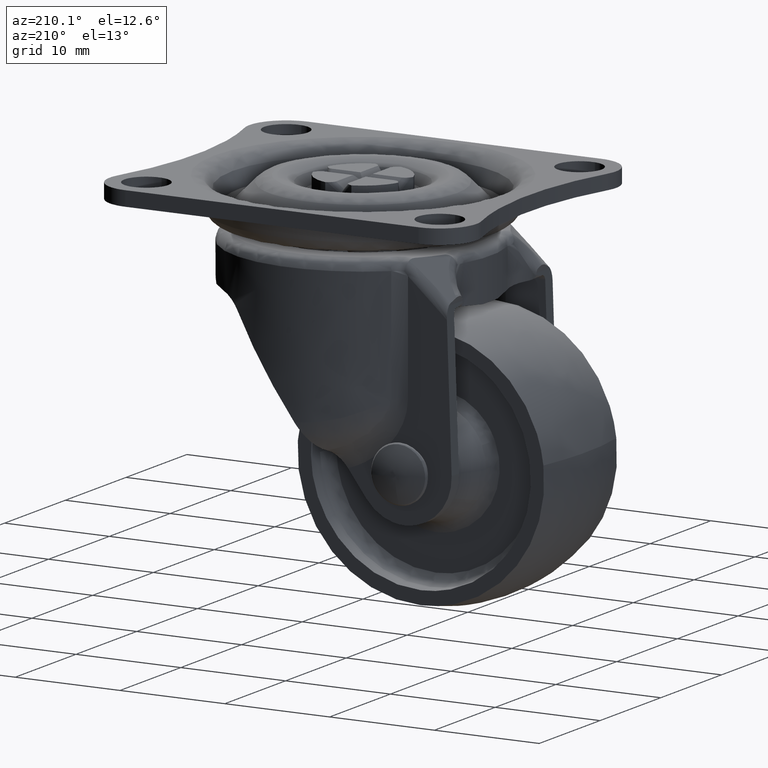
[diagram: clean part render]
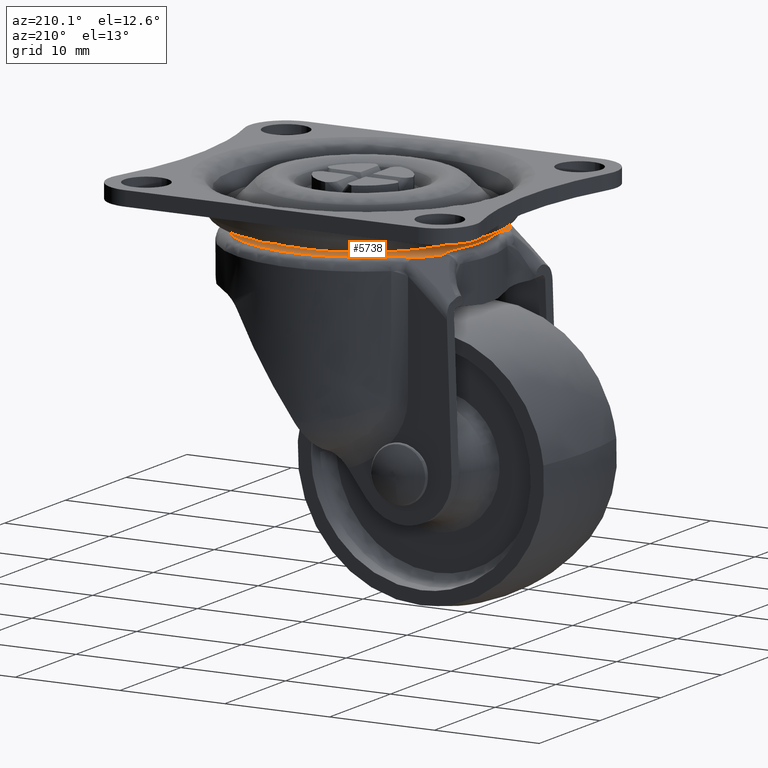
[diagram: same view with one face highlighted and labeled with its STEP entity id]
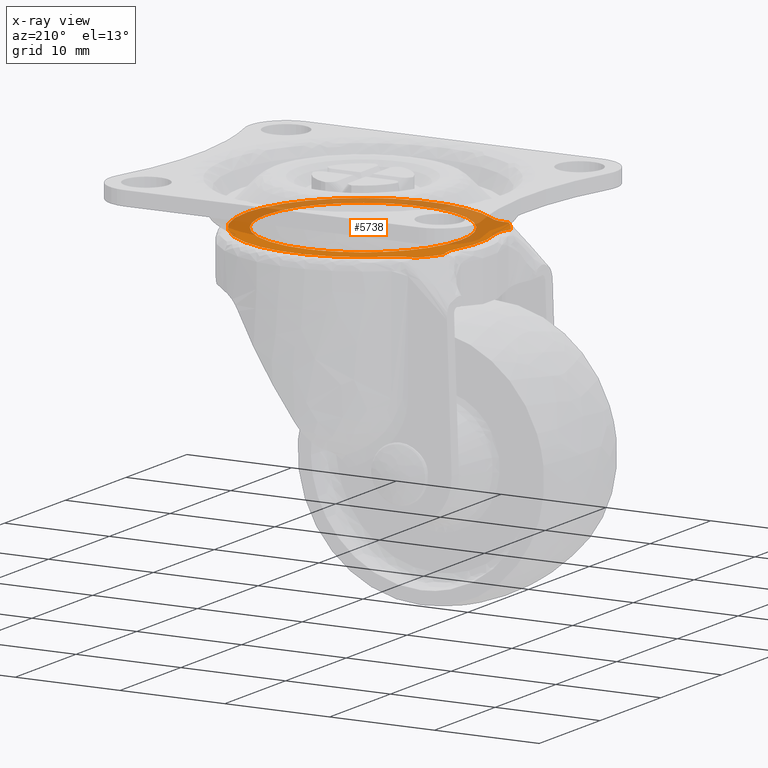
[diagram: x-ray of the same camera — body ghosted, the highlighted face saturated]
A machine part, auxiliary view. The second image highlights one B-rep face of the part: STEP entity #5738.
The next image is the same camera in x-ray: the body ghosted, the highlighted face saturated — about 57% of this face is hidden behind the body in this view.
In plain terms, the highlighted face is a freeform B-spline surface patch.
Its self-contained STEP definition (entity closure, byte-faithful):
#893=CARTESIAN_POINT('',(-0.117579220515249,9.356164553024541,-4.499998000007702));
#894=VERTEX_POINT('',#893);
#910=CARTESIAN_POINT('',(-9.356903334782508,0.0,-4.499998000000000));
#911=VERTEX_POINT('',#910);
#912=CARTESIAN_POINT('',(-9.356903334782508,0.0,-4.499998000000000));
#913=CARTESIAN_POINT('',(-9.356903334782508,9.240053670036382,-4.499998000000000));
#914=CARTESIAN_POINT('',(-0.117579220515249,9.356164553024541,-4.499998000007702));
#922=(BOUNDED_CURVE()B_SPLINE_CURVE(2,(#912,#913,#914),.UNSPECIFIED.,.F.,.U.)B_SPLINE_CURVE_WITH_KNOTS((3,3),(0.0,0.247784295920760),.UNSPECIFIED.)CURVE()GEOMETRIC_REPRESENTATION_ITEM()RATIONAL_B_SPLINE_CURVE((1.0,0.709702639985375,0.994854295641784))REPRESENTATION_ITEM(''));
#923=EDGE_CURVE('',#911,#894,#922,.T.);
#925=CARTESIAN_POINT('',(0.652487294234358,-9.334125580213144,-4.499998000011241));
#926=VERTEX_POINT('',#925);
#927=CARTESIAN_POINT('',(0.652487294234358,-9.334125580213144,-4.499998000011241));
#928=CARTESIAN_POINT('',(0.326641222765872,-9.356903334782510,-4.499998000000001));
#929=CARTESIAN_POINT('',(0.0,-9.356903334782508,-4.499998000000000));
#930=CARTESIAN_POINT('',(-9.356903334782508,-9.356903334782508,-4.499998000000001));
#931=CARTESIAN_POINT('',(-9.356903334782508,0.0,-4.499998000000000));
#939=(BOUNDED_CURVE()B_SPLINE_CURVE(2,(#927,#928,#929,#930,#931),.UNSPECIFIED.,.F.,.U.)B_SPLINE_CURVE_WITH_KNOTS((3,2,3),(0.737833686534273,0.750000000000000,1.0),.UNSPECIFIED.)CURVE()GEOMETRIC_REPRESENTATION_ITEM()RATIONAL_B_SPLINE_CURVE((0.972879876385244,0.985746277151719,1.0,0.707106781186548,1.0))REPRESENTATION_ITEM(''));
#940=EDGE_CURVE('',#926,#911,#939,.T.);
#1009=CARTESIAN_POINT('',(9.356903334782508,0.0,-4.499998000000000));
#1010=VERTEX_POINT('',#1009);
#1011=CARTESIAN_POINT('',(9.356903334782508,0.0,-4.499998000000000));
#1012=CARTESIAN_POINT('',(9.356903334782510,-8.725657135952746,-4.499998000000001));
#1013=CARTESIAN_POINT('',(0.652487294234358,-9.334125580213144,-4.499998000011241));
#1021=(BOUNDED_CURVE()B_SPLINE_CURVE(2,(#1011,#1012,#1013),.UNSPECIFIED.,.F.,.U.)B_SPLINE_CURVE_WITH_KNOTS((3,3),(0.500000000000000,0.737833686534272),.UNSPECIFIED.)CURVE()GEOMETRIC_REPRESENTATION_ITEM()RATIONAL_B_SPLINE_CURVE((1.0,0.721360504034829,0.972879876385243))REPRESENTATION_ITEM(''));
#1022=EDGE_CURVE('',#1010,#926,#1021,.T.);
#1024=CARTESIAN_POINT('',(-0.117579220515249,9.356164553024541,-4.499998000007702));
#1025=CARTESIAN_POINT('',(-0.058791931252408,9.356903334782508,-4.499998000000000));
#1026=CARTESIAN_POINT('',(0.0,9.356903334782508,-4.499998000000000));
#1027=CARTESIAN_POINT('',(9.356903334782508,9.356903334782508,-4.499998000000001));
#1028=CARTESIAN_POINT('',(9.356903334782508,0.0,-4.499998000000000));
#1036=(BOUNDED_CURVE()B_SPLINE_CURVE(2,(#1024,#1025,#1026,#1027,#1028),.UNSPECIFIED.,.F.,.U.)B_SPLINE_CURVE_WITH_KNOTS((3,2,3),(0.247784295920760,0.250000000000000,0.500000000000000),.UNSPECIFIED.)CURVE()GEOMETRIC_REPRESENTATION_ITEM()RATIONAL_B_SPLINE_CURVE((0.994854295641783,0.997404141201173,1.0,0.707106781186548,1.0))REPRESENTATION_ITEM(''));
#1037=EDGE_CURVE('',#894,#1010,#1036,.T.);
#1494=CARTESIAN_POINT('',(-10.715166801738921,-3.259631944086945,-4.499998000000000));
#1495=VERTEX_POINT('',#1494);
#1525=CARTESIAN_POINT('',(-10.902409366156959,-5.475168491720649,-4.499998000000000));
#1526=VERTEX_POINT('',#1525);
#1544=CARTESIAN_POINT('',(-10.715166801738921,-3.259631944086945,-4.499998000000000));
#1545=CARTESIAN_POINT('',(-10.366812595706540,-4.404753076703000,-4.499998000000000));
#1546=CARTESIAN_POINT('',(-10.902409366156970,-5.475168491720647,-4.499998000000000));
#1554=(BOUNDED_CURVE()B_SPLINE_CURVE(2,(#1544,#1545,#1546),.UNSPECIFIED.,.F.,.U.)CURVE()GEOMETRIC_REPRESENTATION_ITEM()QUASI_UNIFORM_CURVE()RATIONAL_B_SPLINE_CURVE((1.0,0.928803561759989,1.0))REPRESENTATION_ITEM(''));
#1555=EDGE_CURVE('',#1495,#1526,#1554,.T.);
#1577=CARTESIAN_POINT('',(-10.715166801738921,3.259631944086945,-4.499998000000000));
#1578=VERTEX_POINT('',#1577);
#1608=CARTESIAN_POINT('',(-10.715166801738921,3.259631944086949,-4.499998000000000));
#1609=CARTESIAN_POINT('',(-11.706770629052906,2.168404E-015,-4.499998000000000));
#1610=CARTESIAN_POINT('',(-10.715166801738921,-3.259631944086946,-4.499998000000000));
#1618=(BOUNDED_CURVE()B_SPLINE_CURVE(2,(#1608,#1609,#1610),.UNSPECIFIED.,.F.,.U.)CURVE()GEOMETRIC_REPRESENTATION_ITEM()QUASI_UNIFORM_CURVE()RATIONAL_B_SPLINE_CURVE((1.0,0.956711321583832,1.0))REPRESENTATION_ITEM(''));
#1619=EDGE_CURVE('',#1578,#1495,#1618,.T.);
#1679=CARTESIAN_POINT('',(-10.902409366157020,5.475168491720750,-4.499998000000074));
#1680=VERTEX_POINT('',#1679);
#1681=CARTESIAN_POINT('',(-10.902409366157020,5.475168491720750,-4.499998000000074));
#1682=CARTESIAN_POINT('',(-10.366812595706518,4.404753076703066,-4.499998000000000));
#1683=CARTESIAN_POINT('',(-10.715166801738921,3.259631944086946,-4.499998000000000));
#1691=(BOUNDED_CURVE()B_SPLINE_CURVE(2,(#1681,#1682,#1683),.UNSPECIFIED.,.F.,.U.)CURVE()GEOMETRIC_REPRESENTATION_ITEM()QUASI_UNIFORM_CURVE()RATIONAL_B_SPLINE_CURVE((1.0,0.928803561759981,1.0))REPRESENTATION_ITEM(''));
#1692=EDGE_CURVE('',#1680,#1578,#1691,.T.);
#2040=CARTESIAN_POINT('',(-9.418130192429700,-7.754922544967290,-4.499998000000000));
#2041=VERTEX_POINT('',#2040);
#2042=CARTESIAN_POINT('',(-7.596189706873390,-8.230303878787881,-4.499998000000000));
#2043=VERTEX_POINT('',#2042);
#2044=CARTESIAN_POINT('',(-9.418130192429702,-7.754922544967289,-4.499998000000000));
#2045=CARTESIAN_POINT('',(-8.380341000817733,-7.506568513069071,-4.499998000000001));
#2046=CARTESIAN_POINT('',(-7.596189706873388,-8.230303878787879,-4.499998000000000));
#2054=(BOUNDED_CURVE()B_SPLINE_CURVE(2,(#2044,#2045,#2046),.UNSPECIFIED.,.F.,.U.)CURVE()GEOMETRIC_REPRESENTATION_ITEM()QUASI_UNIFORM_CURVE()RATIONAL_B_SPLINE_CURVE((1.0,0.882274951990088,1.0))REPRESENTATION_ITEM(''));
#2055=EDGE_CURVE('',#2041,#2043,#2054,.T.);
#2233=CARTESIAN_POINT('',(-7.363144452531331,8.439437408450710,-4.499998000000000));
#2234=VERTEX_POINT('',#2233);
#2248=CARTESIAN_POINT('',(-7.596189706873390,-8.230303878787876,-4.499998000000000));
#2249=CARTESIAN_POINT('',(0.342901898448837,-15.557718130125982,-4.499998000000000));
#2250=CARTESIAN_POINT('',(7.951438988623480,-7.887624357827800,-4.499998000000000));
#2251=CARTESIAN_POINT('',(15.559976078798140,-0.217530585529606,-4.499998000000000));
#2252=CARTESIAN_POINT('',(8.168828502011003,7.662260822024573,-4.499998000000000));
#2253=CARTESIAN_POINT('',(0.777680925223878,15.542052229578754,-4.499998000000000));
#2254=CARTESIAN_POINT('',(-7.363144452531324,8.439437408450706,-4.499998000000000));
#2262=(BOUNDED_CURVE()B_SPLINE_CURVE(2,(#2248,#2249,#2250,#2251,#2252,#2253,#2254),.UNSPECIFIED.,.F.,.U.)B_SPLINE_CURVE_WITH_KNOTS((3,2,2,3),(0.0,0.333333333333333,0.666666666666667,1.0),.UNSPECIFIED.)CURVE()GEOMETRIC_REPRESENTATION_ITEM()RATIONAL_B_SPLINE_CURVE((1.0,0.719725121434746,1.0,0.719725121434746,1.0,0.719725121434746,1.0))REPRESENTATION_ITEM(''));
#2263=EDGE_CURVE('',#2043,#2234,#2262,.T.);
#2303=CARTESIAN_POINT('',(-9.460946783310702,7.702628510019350,-4.499998000000074));
#2304=VERTEX_POINT('',#2303);
#2324=CARTESIAN_POINT('',(-7.363144452531327,8.439437408450704,-4.499998000000000));
#2325=CARTESIAN_POINT('',(-8.265060241862722,7.652544169072441,-4.499998000000000));
#2326=CARTESIAN_POINT('',(-9.460946783310702,7.702628510019350,-4.499998000000074));
#2334=(BOUNDED_CURVE()B_SPLINE_CURVE(2,(#2324,#2325,#2326),.UNSPECIFIED.,.F.,.U.)CURVE()GEOMETRIC_REPRESENTATION_ITEM()QUASI_UNIFORM_CURVE()RATIONAL_B_SPLINE_CURVE((1.0,0.928803561759981,1.0))REPRESENTATION_ITEM(''));
#2335=EDGE_CURVE('',#2234,#2304,#2334,.T.);
#5278=CARTESIAN_POINT('',(-9.418130192429700,-7.754922544967290,-4.499998000000000));
#5279=CARTESIAN_POINT('',(-10.288152174549451,-6.698305892722827,-4.499998000000000));
#5280=CARTESIAN_POINT('',(-10.902409366156959,-5.475168491720649,-4.499998000000000));
#5288=(BOUNDED_CURVE()B_SPLINE_CURVE(2,(#5278,#5279,#5280),.UNSPECIFIED.,.F.,.U.)CURVE()GEOMETRIC_REPRESENTATION_ITEM()QUASI_UNIFORM_CURVE()RATIONAL_B_SPLINE_CURVE((1.0,0.993765533456628,1.0))REPRESENTATION_ITEM(''));
#5289=EDGE_CURVE('',#2041,#1526,#5288,.T.);
#5600=CARTESIAN_POINT('',(-10.902409366157020,5.475168491720750,-4.499998000000074));
#5601=CARTESIAN_POINT('',(-10.303504214214518,6.667736199518449,-4.499998000000074));
#5602=CARTESIAN_POINT('',(-9.460946783310702,7.702628510019350,-4.499998000000074));
#5610=(BOUNDED_CURVE()B_SPLINE_CURVE(2,(#5600,#5601,#5602),.UNSPECIFIED.,.F.,.U.)CURVE()GEOMETRIC_REPRESENTATION_ITEM()QUASI_UNIFORM_CURVE()RATIONAL_B_SPLINE_CURVE((1.0,0.994070541806449,1.0))REPRESENTATION_ITEM(''));
#5611=EDGE_CURVE('',#1680,#2304,#5610,.T.);
#5717=CARTESIAN_POINT('',(-12.318825085515391,-12.315326044468300,-4.499998000000000));
#5718=CARTESIAN_POINT('',(12.317731576126610,-12.315326044468300,-4.499998000000000));
#5719=CARTESIAN_POINT('',(-12.318825085515391,12.304050755128641,-4.499998000000000));
#5720=CARTESIAN_POINT('',(12.317731576126610,12.304050755128641,-4.499998000000000));
#5721=B_SPLINE_SURFACE_WITH_KNOTS('',1,1,((#5717,#5719),(#5718,#5720)),.UNSPECIFIED.,.F.,.F.,.U.,(2,2),(2,2),(0.0,24.636556661642000),(0.0,24.619376799596939),.UNSPECIFIED.);
#5722=ORIENTED_EDGE('',*,*,#5611,.F.);
#5723=ORIENTED_EDGE('',*,*,#1692,.T.);
#5724=ORIENTED_EDGE('',*,*,#1619,.T.);
#5725=ORIENTED_EDGE('',*,*,#1555,.T.);
#5726=ORIENTED_EDGE('',*,*,#5289,.F.);
#5727=ORIENTED_EDGE('',*,*,#2055,.T.);
#5728=ORIENTED_EDGE('',*,*,#2263,.T.);
#5729=ORIENTED_EDGE('',*,*,#2335,.T.);
#5730=EDGE_LOOP('',(#5722,#5723,#5724,#5725,#5726,#5727,#5728,#5729));
#5731=FACE_OUTER_BOUND('',#5730,.T.);
#5732=ORIENTED_EDGE('',*,*,#923,.T.);
#5733=ORIENTED_EDGE('',*,*,#1037,.T.);
#5734=ORIENTED_EDGE('',*,*,#1022,.T.);
#5735=ORIENTED_EDGE('',*,*,#940,.T.);
#5736=EDGE_LOOP('',(#5732,#5733,#5734,#5735));
#5737=FACE_BOUND('',#5736,.T.);
#5738=ADVANCED_FACE('',(#5731,#5737),#5721,.T.);